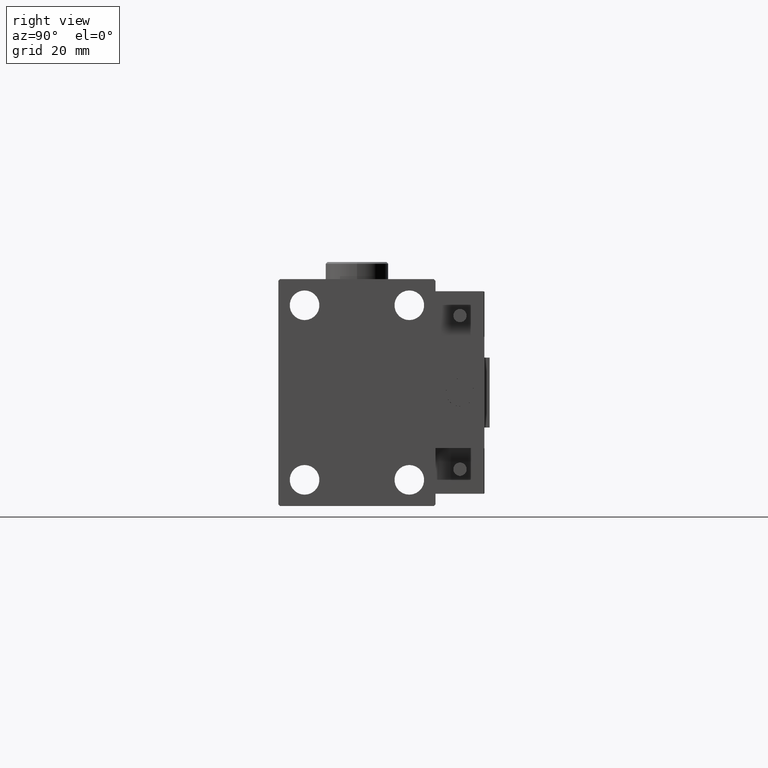
[diagram: clean part render]
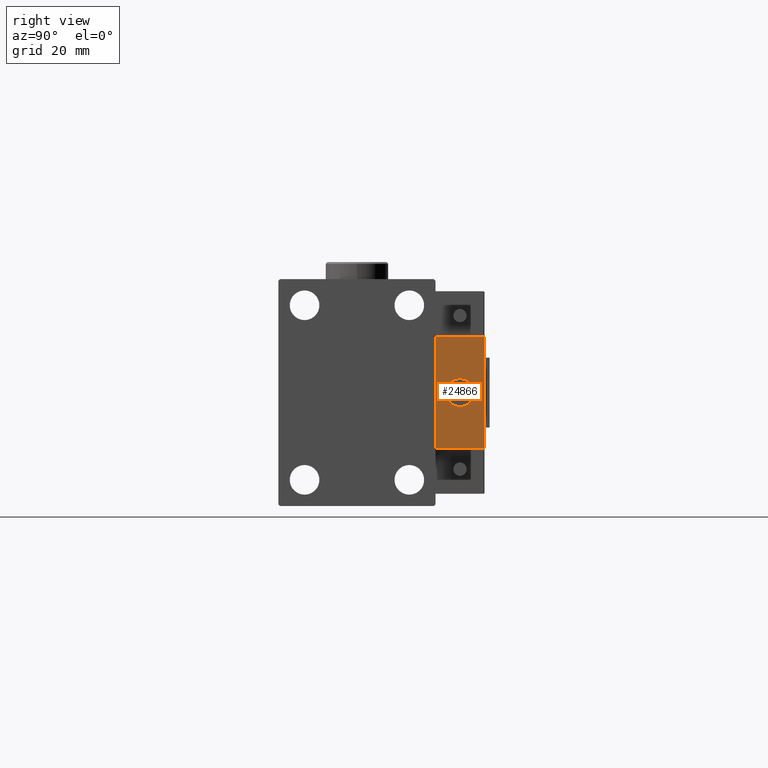
[diagram: same view with one face highlighted and labeled with its STEP entity id]
A machine part, right view. The second image highlights one B-rep face of the part: STEP entity #24866.
In plain terms, the highlighted planar face has unit normal (-1, 0, 0).
Its self-contained STEP definition (entity closure, byte-faithful):
#292 = PLANE ( 'NONE',  #30305 ) ;
#366 = DIRECTION ( 'NONE',  ( -1.000000000000000000, 0.000000000000000000, 0.000000000000000000 ) ) ;
#5068 = VERTEX_POINT ( 'NONE', #16960 ) ;
#6689 = EDGE_LOOP ( 'NONE', ( #22747, #21029 ) ) ;
#12377 = DIRECTION ( 'NONE',  ( -1.000000000000000000, 0.000000000000000000, 0.000000000000000000 ) ) ;
#12841 = VERTEX_POINT ( 'NONE', #37637 ) ;
#12955 = CARTESIAN_POINT ( 'NONE',  ( 10.00000000000000000, 0.000000000000000000, 0.000000000000000000 ) ) ;
#13835 = EDGE_CURVE ( 'NONE', #12841, #44567, #51508, .T. ) ;
#13860 = DIRECTION ( 'NONE',  ( 0.000000000000000000, 0.000000000000000000, -1.000000000000000000 ) ) ;
#14112 = DIRECTION ( 'NONE',  ( 0.000000000000000000, 0.000000000000000000, 1.000000000000000000 ) ) ;
#15924 = EDGE_LOOP ( 'NONE', ( #38281, #49164, #52854, #24745 ) ) ;
#16496 = VERTEX_POINT ( 'NONE', #43189 ) ;
#16960 = CARTESIAN_POINT ( 'NONE',  ( 10.00000000000000000, 7.000000000000000000, 15.99999999999999289 ) ) ;
#17340 = DIRECTION ( 'NONE',  ( -1.000000000000000000, 0.000000000000000000, -0.000000000000000000 ) ) ;
#17885 = FACE_BOUND ( 'NONE', #6689, .T. ) ;
#19248 = CARTESIAN_POINT ( 'NONE',  ( 10.00000000000000000, -7.000000000000000000, -16.00000000000000711 ) ) ;
#19699 = EDGE_CURVE ( 'NONE', #5068, #49888, #36044, .T. ) ;
#21029 = ORIENTED_EDGE ( 'NONE', *, *, #44642, .T. ) ;
#22747 = ORIENTED_EDGE ( 'NONE', *, *, #47419, .T. ) ;
#22813 = DIRECTION ( 'NONE',  ( 0.000000000000000000, -1.000000000000000000, 0.000000000000000000 ) ) ;
#22906 = AXIS2_PLACEMENT_3D ( 'NONE', #51219, #366, #14112 ) ;
#23955 = CARTESIAN_POINT ( 'NONE',  ( 10.00000000000000000, 0.000000000000000000, 4.000000000000000000 ) ) ;
#24745 = ORIENTED_EDGE ( 'NONE', *, *, #42885, .T. ) ;
#24866 = ADVANCED_FACE ( 'NONE', ( #17885, #26388 ), #292, .F. ) ;
#24999 = DIRECTION ( 'NONE',  ( 0.000000000000000000, 0.000000000000000000, 1.000000000000000000 ) ) ;
#26388 = FACE_OUTER_BOUND ( 'NONE', #15924, .T. ) ;
#28845 = CARTESIAN_POINT ( 'NONE',  ( 10.00000000000000000, 7.000000000000000000, -16.00000000000000711 ) ) ;
#30305 = AXIS2_PLACEMENT_3D ( 'NONE', #12955, #17340, #34107 ) ;
#31509 = VECTOR ( 'NONE', #54014, 1000.000000000000000 ) ;
#34012 = VERTEX_POINT ( 'NONE', #23955 ) ;
#34107 = DIRECTION ( 'NONE',  ( -0.000000000000000000, 0.000000000000000000, 1.000000000000000000 ) ) ;
#35023 = CARTESIAN_POINT ( 'NONE',  ( 10.00000000000000000, -7.000000000000000000, 15.99999999999999289 ) ) ;
#35466 = LINE ( 'NONE', #38793, #51093 ) ;
#36044 = LINE ( 'NONE', #39620, #39024 ) ;
#36057 = CIRCLE ( 'NONE', #22906, 4.000000000000000000 ) ;
#37008 = VECTOR ( 'NONE', #13860, 1000.000000000000000 ) ;
#37256 = CARTESIAN_POINT ( 'NONE',  ( 10.00000000000000000, 7.000000000000000000, 15.99999999999999289 ) ) ;
#37637 = CARTESIAN_POINT ( 'NONE',  ( 10.00000000000000000, -7.000000000000000000, 15.99999999999999289 ) ) ;
#38281 = ORIENTED_EDGE ( 'NONE', *, *, #13835, .T. ) ;
#38793 = CARTESIAN_POINT ( 'NONE',  ( 10.00000000000000000, 7.000000000000000000, -16.00000000000000711 ) ) ;
#39024 = VECTOR ( 'NONE', #40160, 1000.000000000000000 ) ;
#39620 = CARTESIAN_POINT ( 'NONE',  ( 10.00000000000000000, 7.000000000000000000, 15.99999999999999289 ) ) ;
#40160 = DIRECTION ( 'NONE',  ( 0.000000000000000000, 0.000000000000000000, -1.000000000000000000 ) ) ;
#42885 = EDGE_CURVE ( 'NONE', #5068, #12841, #49349, .T. ) ;
#43189 = CARTESIAN_POINT ( 'NONE',  ( 10.00000000000000000, 4.898587196589412829E-16, -4.000000000000000000 ) ) ;
#44567 = VERTEX_POINT ( 'NONE', #19248 ) ;
#44642 = EDGE_CURVE ( 'NONE', #16496, #34012, #50894, .T. ) ;
#47419 = EDGE_CURVE ( 'NONE', #34012, #16496, #36057, .T. ) ;
#49164 = ORIENTED_EDGE ( 'NONE', *, *, #49775, .F. ) ;
#49349 = LINE ( 'NONE', #37256, #31509 ) ;
#49775 = EDGE_CURVE ( 'NONE', #49888, #44567, #35466, .T. ) ;
#49888 = VERTEX_POINT ( 'NONE', #28845 ) ;
#50021 = CARTESIAN_POINT ( 'NONE',  ( 10.00000000000000000, 0.000000000000000000, 0.000000000000000000 ) ) ;
#50894 = CIRCLE ( 'NONE', #52655, 4.000000000000000000 ) ;
#51093 = VECTOR ( 'NONE', #22813, 1000.000000000000000 ) ;
#51219 = CARTESIAN_POINT ( 'NONE',  ( 10.00000000000000000, 0.000000000000000000, 0.000000000000000000 ) ) ;
#51508 = LINE ( 'NONE', #35023, #37008 ) ;
#52655 = AXIS2_PLACEMENT_3D ( 'NONE', #50021, #12377, #24999 ) ;
#52854 = ORIENTED_EDGE ( 'NONE', *, *, #19699, .F. ) ;
#54014 = DIRECTION ( 'NONE',  ( 0.000000000000000000, -1.000000000000000000, 0.000000000000000000 ) ) ;